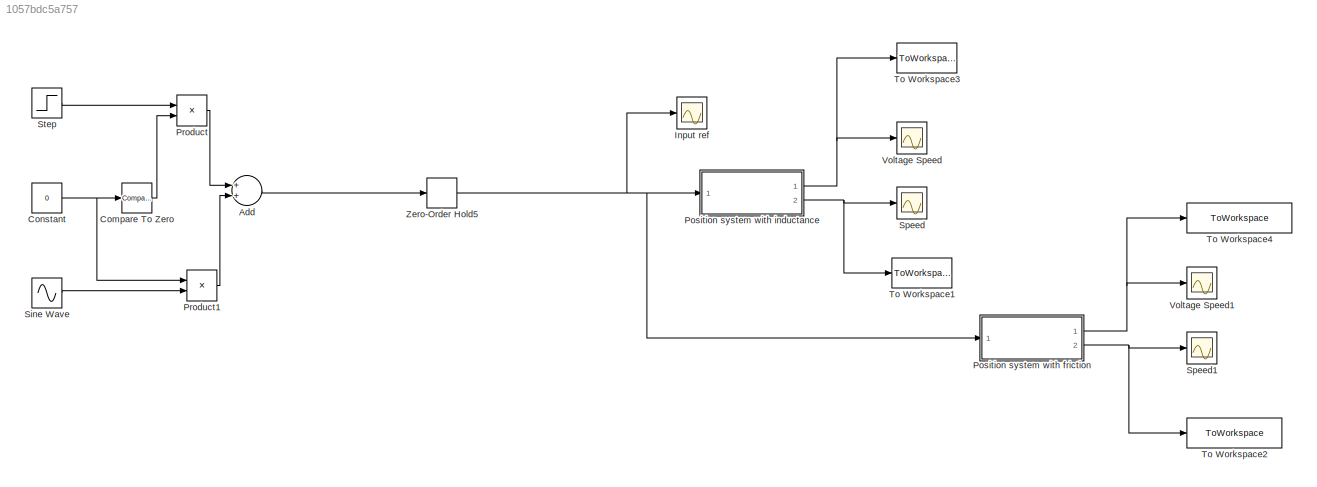
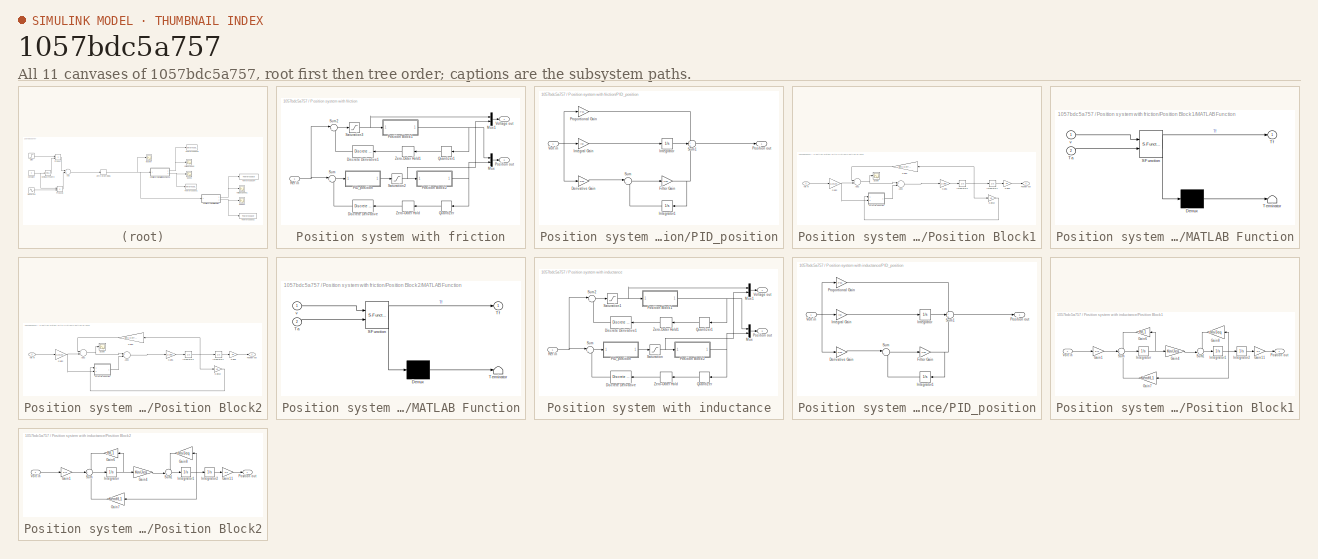
[diagram: thumbnail index - all 11 canvases of the model, root first then tree order]
MODEL slx_1057bdc5a757
KIND model
CONFIG AbsTol = auto
CONFIG FixedStep = auto
CONFIG MaxStep = auto
CONFIG MinStep = auto
CONFIG RelTol = 1e-3
CONFIG SampleTimeConstraint = Unconstrained
CONFIG Solver = ode45
CONFIG SolverMode = SingleTasking
CONFIG SolverName = ode45
CONFIG StartTime = 0.0
CONFIG StopTime = time
BLOCK [Sum] Add
  InputSameDT = off
  OutDataTypeStr = Inherit: Inherit via internal rule
  Ports = [2, 1]
  SaturateOnIntegerOverflow = off
BLOCK [Reference] Compare To Zero  REF=simulink/Logic and Bit
Operations/Compare
To Zero
  Ports = [1, 1]
  SourceBlock = simulink/Logic and Bit\nOperations/Compare\nTo Zero
  SourceType = Compare To Zero
BLOCK [Constant] Constant
  Value = 0
BLOCK [Scope] Input ref
  Ports = [1]
  ScopeSpecificationString = C++SS(StrPVP('Location','[680, 330, 1240, 750]'),StrPVP('Open','off'),MxPVP('AxesTitles',24,'struct(''axes1'',''%<SignalLabel>'')'),MxPVP('ScopeGraphics',28,'struct(''FigureColor'',''[0.5 0.5 0.5]'',''AxesColor'',''[0 0 0]'',''AxesTickColor'',''[1 1 1]'',''LineColors'',''[1 1 0;1 0 1;0 1 1;1 0 0;0 1 0;0 0 1]'',''LineStyles'',''-|-|-|-|-|-'',''LineWidths'',''[0.5 0.5 0.5 0.5 0.5 0.5]'',''MarkerStyl...<+317ch>
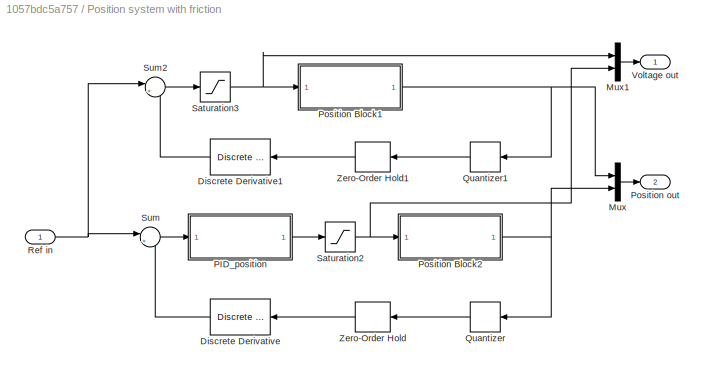
BLOCK [SubSystem] Position system with friction
  Ports = [1, 2]
  RequestExecContextInheritance = off
  Variant = off
BLOCK [Reference] Position system with friction/Discrete Derivative  REF=simulink/Discrete/Discrete Derivative
  Ports = [1, 1]
  SourceBlock = simulink/Discrete/Discrete Derivative
  SourceType = Discrete Derivative
BLOCK [Reference] Position system with friction/Discrete Derivative1  REF=simulink/Discrete/Discrete Derivative
  Ports = [1, 1]
  SourceBlock = simulink/Discrete/Discrete Derivative
  SourceType = Discrete Derivative
BLOCK [Mux] Position system with friction/Mux
  DisplayOption = bar
  Inputs = 2
  Ports = [2, 1]
BLOCK [Mux] Position system with friction/Mux1
  DisplayOption = bar
  Inputs = 2
  Ports = [2, 1]
BLOCK [SubSystem] Position system with friction/PID_position
  Ports = [1, 1]
  RequestExecContextInheritance = off
  Variant = off
BLOCK [Gain] Position system with friction/PID_position/Derivative Gain
  Gain = Dsp
  OutDataTypeStr = Inherit: Inherit via internal rule
  ParamDataTypeStr = Inherit: Inherit via internal rule
  SaturateOnIntegerOverflow = off
BLOCK [Gain] Position system with friction/PID_position/Filter Gain
  Gain = Nsp
  OutDataTypeStr = Inherit: Inherit via internal rule
  ParamDataTypeStr = Inherit: Inherit via internal rule
  SaturateOnIntegerOverflow = off
BLOCK [Gain] Position system with friction/PID_position/Integral Gain
  Gain = Isp
  OutDataTypeStr = Inherit: Inherit via internal rule
  ParamDataTypeStr = Inherit: Inherit via internal rule
  SaturateOnIntegerOverflow = off
BLOCK [Integrator] Position system with friction/PID_position/Integrator
  Ports = [1, 1]
BLOCK [Integrator] Position system with friction/PID_position/Integrator1
  Ports = [1, 1]
BLOCK [Outport] Position system with friction/PID_position/Position out
  IconDisplay = Port number
BLOCK [Gain] Position system with friction/PID_position/Proportional Gain
  Gain = Psp
  OutDataTypeStr = Inherit: Inherit via internal rule
  ParamDataTypeStr = Inherit: Inherit via internal rule
  SaturateOnIntegerOverflow = off
BLOCK [Sum] Position system with friction/PID_position/Sum
  IconShape = round
  InputSameDT = off
  Inputs = |+-
  OutDataTypeStr = Inherit: Inherit via internal rule
  Ports = [2, 1]
  SaturateOnIntegerOverflow = off
BLOCK [Sum] Position system with friction/PID_position/Sum1
  IconShape = round
  InputSameDT = off
  Inputs = +++
  OutDataTypeStr = Inherit: Inherit via internal rule
  Ports = [3, 1]
  SaturateOnIntegerOverflow = off
BLOCK [Inport] Position system with friction/PID_position/Volt in
  IconDisplay = Port number
BLOCK [SubSystem] Position system with friction/Position Block1
  Ports = [1, 1]
  RequestExecContextInheritance = off
  Variant = off
BLOCK [Sum] Position system with friction/Position Block1/Add2
  InputSameDT = off
  Inputs = -+
  OutDataTypeStr = Inherit: Inherit via internal rule
  Ports = [2, 1]
  SaturateOnIntegerOverflow = off
BLOCK [Sum] Position system with friction/Position Block1/Add3
  InputSameDT = off
  Inputs = +-
  OutDataTypeStr = Inherit: Inherit via internal rule
  Ports = [2, 1]
  SaturateOnIntegerOverflow = off
BLOCK [Gain] Position system with friction/Position Block1/Gain10
  Gain = 1/n
  OutDataTypeStr = Inherit: Inherit via internal rule
  ParamDataTypeStr = Inherit: Inherit via internal rule
  SaturateOnIntegerOverflow = off
BLOCK [Gain] Position system with friction/Position Block1/Gain2
  Gain = Km/R
  OutDataTypeStr = Inherit: Inherit via internal rule
  ParamDataTypeStr = Inherit: Inherit via internal rule
  SaturateOnIntegerOverflow = off
BLOCK [Gain] Position system with friction/Position Block1/Gain3
  Gain = dm+ Km*Kemf/R
  OutDataTypeStr = Inherit: Inherit via internal rule
  ParamDataTypeStr = Inherit: Inherit via internal rule
  SaturateOnIntegerOverflow = off
BLOCK [Gain] Position system with friction/Position Block1/Gain5
  Gain = 1/Jeq
  OutDataTypeStr = Inherit: Inherit via internal rule
  ParamDataTypeStr = Inherit: Inherit via internal rule
  SaturateOnIntegerOverflow = off
BLOCK [Gain] Position system with friction/Position Block1/Gain9
  Gain = 1/n
  OutDataTypeStr = Inherit: Inherit via internal rule
  ParamDataTypeStr = Inherit: Inherit via internal rule
  SaturateOnIntegerOverflow = off
BLOCK [Integrator] Position system with friction/Position Block1/Integrator3
  Ports = [1, 1]
BLOCK [Integrator] Position system with friction/Position Block1/Integrator4
  Ports = [1, 1]
BLOCK [SubSystem] Position system with friction/Position Block1/MATLAB Function
  ErrorFcn = Stateflow.Translate.translate
  PermitHierarchicalResolution = ExplicitOnly
  Ports = [2, 1]
  RequestExecContextInheritance = off
  SFBlockType = MATLAB Function
  TreatAsAtomicUnit = on
  Variant = off
BLOCK [Demux] Position system with friction/Position Block1/MATLAB Function/ Demux 
  Outputs = 1
  Ports = [1, 1]
BLOCK [S-Function] Position system with friction/Position Block1/MATLAB Function/ SFunction 
  EnableBusSupport = on
  FunctionName = sf_sfun
  PortCounts = [2 2]
  Ports = [2, 2]
  SFunctionDeploymentMode = off
  Tag = Stateflow S-Function SimLab3_2 1
BLOCK [Terminator] Position system with friction/Position Block1/MATLAB Function/ Terminator 
BLOCK [Inport] Position system with friction/Position Block1/MATLAB Function/Ta
  IconDisplay = Port number
  Port = 2
BLOCK [Outport] Position system with friction/Position Block1/MATLAB Function/Tf
  IconDisplay = Port number
BLOCK [Inport] Position system with friction/Position Block1/MATLAB Function/v
  IconDisplay = Port number
BLOCK [Outport] Position system with friction/Position Block1/Position out
  IconDisplay = Port number
BLOCK [Scope] Position system with friction/Position Block1/Scope
  Ports = [1]
  ScopeSpecificationString = C++SS(StrPVP('Location','[680, 330, 1240, 750]'),StrPVP('Open','off'),MxPVP('AxesTitles',24,'struct(''axes1'',''%<SignalLabel>'')'),MxPVP('ScopeGraphics',28,'struct(''FigureColor'',''[0.5 0.5 0.5]'',''AxesColor'',''[0 0 0]'',''AxesTickColor'',''[1 1 1]'',''LineColors'',''[1 1 0;1 0 1;0 1 1;1 0 0;0 1 0;0 0 1]'',''LineStyles'',''-|-|-|-|-|-'',''LineWidths'',''[0.5 0.5 0.5 0.5 0.5 0.5]'',''MarkerStyl...<+293ch>
BLOCK [Inport] Position system with friction/Position Block1/Volt in
  IconDisplay = Port number
BLOCK [SubSystem] Position system with friction/Position Block2
  Ports = [1, 1]
  RequestExecContextInheritance = off
  Variant = off
BLOCK [Sum] Position system with friction/Position Block2/Add2
  InputSameDT = off
  Inputs = -+
  OutDataTypeStr = Inherit: Inherit via internal rule
  Ports = [2, 1]
  SaturateOnIntegerOverflow = off
BLOCK [Sum] Position system with friction/Position Block2/Add3
  InputSameDT = off
  Inputs = +-
  OutDataTypeStr = Inherit: Inherit via internal rule
  Ports = [2, 1]
  SaturateOnIntegerOverflow = off
BLOCK [Gain] Position system with friction/Position Block2/Gain10
  Gain = 1/n
  OutDataTypeStr = Inherit: Inherit via internal rule
  ParamDataTypeStr = Inherit: Inherit via internal rule
  SaturateOnIntegerOverflow = off
BLOCK [Gain] Position system with friction/Position Block2/Gain2
  Gain = Km/R
  OutDataTypeStr = Inherit: Inherit via internal rule
  ParamDataTypeStr = Inherit: Inherit via internal rule
  SaturateOnIntegerOverflow = off
BLOCK [Gain] Position system with friction/Position Block2/Gain3
  Gain = dm+ Km*Kemf/R
  OutDataTypeStr = Inherit: Inherit via internal rule
  ParamDataTypeStr = Inherit: Inherit via internal rule
  SaturateOnIntegerOverflow = off
BLOCK [Gain] Position system with friction/Position Block2/Gain5
  Gain = 1/Jeq
  OutDataTypeStr = Inherit: Inherit via internal rule
  ParamDataTypeStr = Inherit: Inherit via internal rule
  SaturateOnIntegerOverflow = off
BLOCK [Gain] Position system with friction/Position Block2/Gain9
  Gain = 1/n
  OutDataTypeStr = Inherit: Inherit via internal rule
  ParamDataTypeStr = Inherit: Inherit via internal rule
  SaturateOnIntegerOverflow = off
BLOCK [Integrator] Position system with friction/Position Block2/Integrator3
  Ports = [1, 1]
BLOCK [Integrator] Position system with friction/Position Block2/Integrator4
  Ports = [1, 1]
BLOCK [SubSystem] Position system with friction/Position Block2/MATLAB Function
  ErrorFcn = Stateflow.Translate.translate
  PermitHierarchicalResolution = ExplicitOnly
  Ports = [2, 1]
  RequestExecContextInheritance = off
  SFBlockType = MATLAB Function
  TreatAsAtomicUnit = on
  Variant = off
BLOCK [Demux] Position system with friction/Position Block2/MATLAB Function/ Demux 
  Outputs = 1
  Ports = [1, 1]
BLOCK [S-Function] Position system with friction/Position Block2/MATLAB Function/ SFunction 
  EnableBusSupport = on
  FunctionName = sf_sfun
  PortCounts = [2 2]
  Ports = [2, 2]
  SFunctionDeploymentMode = off
  Tag = Stateflow S-Function SimLab3_2 4
BLOCK [Terminator] Position system with friction/Position Block2/MATLAB Function/ Terminator 
BLOCK [Inport] Position system with friction/Position Block2/MATLAB Function/Ta
  IconDisplay = Port number
  Port = 2
BLOCK [Outport] Position system with friction/Position Block2/MATLAB Function/Tf
  IconDisplay = Port number
BLOCK [Inport] Position system with friction/Position Block2/MATLAB Function/v
  IconDisplay = Port number
BLOCK [Outport] Position system with friction/Position Block2/Position out
  IconDisplay = Port number
BLOCK [Scope] Position system with friction/Position Block2/Scope
  Ports = [1]
  ScopeSpecificationString = C++SS(StrPVP('Location','[680, 330, 1240, 750]'),StrPVP('Open','off'),MxPVP('AxesTitles',24,'struct(''axes1'',''%<SignalLabel>'')'),MxPVP('ScopeGraphics',28,'struct(''FigureColor'',''[0.5 0.5 0.5]'',''AxesColor'',''[0 0 0]'',''AxesTickColor'',''[1 1 1]'',''LineColors'',''[1 1 0;1 0 1;0 1 1;1 0 0;0 1 0;0 0 1]'',''LineStyles'',''-|-|-|-|-|-'',''LineWidths'',''[0.5 0.5 0.5 0.5 0.5 0.5]'',''MarkerStyl...<+293ch>
BLOCK [Inport] Position system with friction/Position Block2/Volt in
  IconDisplay = Port number
BLOCK [Outport] Position system with friction/Position out
  IconDisplay = Port number
  Port = 2
BLOCK [Quantizer] Position system with friction/Quantizer
  QuantizationInterval = Pulses
  SampleTime = Ts
BLOCK [Quantizer] Position system with friction/Quantizer1
  QuantizationInterval = Pulses
  SampleTime = Ts
BLOCK [Inport] Position system with friction/Ref in
  IconDisplay = Port number
BLOCK [Saturate] Position system with friction/Saturation2
  InputPortMap = u0
  LowerLimit = -24
  Ports = [1, 1]
  UpperLimit = 24
BLOCK [Saturate] Position system with friction/Saturation3
  InputPortMap = u0
  LowerLimit = -24
  Ports = [1, 1]
  UpperLimit = 24
BLOCK [Sum] Position system with friction/Sum
  IconShape = round
  InputSameDT = off
  Inputs = |+-
  OutDataTypeStr = Inherit: Inherit via internal rule
  Ports = [2, 1]
  SaturateOnIntegerOverflow = off
BLOCK [Sum] Position system with friction/Sum2
  IconShape = round
  InputSameDT = off
  Inputs = |+-
  OutDataTypeStr = Inherit: Inherit via internal rule
  Ports = [2, 1]
  SaturateOnIntegerOverflow = off
BLOCK [Outport] Position system with friction/Voltage out
  IconDisplay = Port number
BLOCK [ZeroOrderHold] Position system with friction/Zero-Order Hold
  SampleTime = Ts
BLOCK [ZeroOrderHold] Position system with friction/Zero-Order Hold1
  SampleTime = Ts
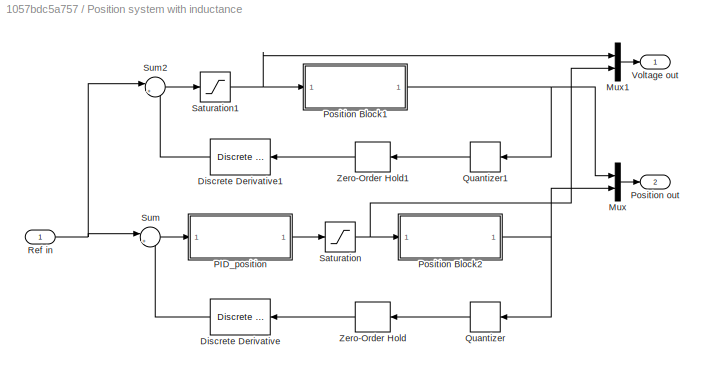
BLOCK [SubSystem] Position system with inductance
  Ports = [1, 2]
  RequestExecContextInheritance = off
  Variant = off
BLOCK [Reference] Position system with inductance/Discrete Derivative  REF=simulink/Discrete/Discrete Derivative
  Ports = [1, 1]
  SourceBlock = simulink/Discrete/Discrete Derivative
  SourceType = Discrete Derivative
BLOCK [Reference] Position system with inductance/Discrete Derivative1  REF=simulink/Discrete/Discrete Derivative
  Ports = [1, 1]
  SourceBlock = simulink/Discrete/Discrete Derivative
  SourceType = Discrete Derivative
BLOCK [Mux] Position system with inductance/Mux
  DisplayOption = bar
  Inputs = 2
  Ports = [2, 1]
BLOCK [Mux] Position system with inductance/Mux1
  DisplayOption = bar
  Inputs = 2
  Ports = [2, 1]
BLOCK [SubSystem] Position system with inductance/PID_position
  Ports = [1, 1]
  RequestExecContextInheritance = off
  Variant = off
BLOCK [Gain] Position system with inductance/PID_position/Derivative Gain
  Gain = Dsp
  OutDataTypeStr = Inherit: Inherit via internal rule
  ParamDataTypeStr = Inherit: Inherit via internal rule
  SaturateOnIntegerOverflow = off
BLOCK [Gain] Position system with inductance/PID_position/Filter Gain
  Gain = Nsp
  OutDataTypeStr = Inherit: Inherit via internal rule
  ParamDataTypeStr = Inherit: Inherit via internal rule
  SaturateOnIntegerOverflow = off
BLOCK [Gain] Position system with inductance/PID_position/Integral Gain
  Gain = Isp
  OutDataTypeStr = Inherit: Inherit via internal rule
  ParamDataTypeStr = Inherit: Inherit via internal rule
  SaturateOnIntegerOverflow = off
BLOCK [Integrator] Position system with inductance/PID_position/Integrator
  Ports = [1, 1]
BLOCK [Integrator] Position system with inductance/PID_position/Integrator1
  Ports = [1, 1]
BLOCK [Outport] Position system with inductance/PID_position/Position out
  IconDisplay = Port number
BLOCK [Gain] Position system with inductance/PID_position/Proportional Gain
  Gain = Psp
  OutDataTypeStr = Inherit: Inherit via internal rule
  ParamDataTypeStr = Inherit: Inherit via internal rule
  SaturateOnIntegerOverflow = off
BLOCK [Sum] Position system with inductance/PID_position/Sum
  IconShape = round
  InputSameDT = off
  Inputs = |+-
  OutDataTypeStr = Inherit: Inherit via internal rule
  Ports = [2, 1]
  SaturateOnIntegerOverflow = off
BLOCK [Sum] Position system with inductance/PID_position/Sum1
  IconShape = round
  InputSameDT = off
  Inputs = +++
  OutDataTypeStr = Inherit: Inherit via internal rule
  Ports = [3, 1]
  SaturateOnIntegerOverflow = off
BLOCK [Inport] Position system with inductance/PID_position/Volt in
  IconDisplay = Port number
BLOCK [SubSystem] Position system with inductance/Position Block1
  Ports = [1, 1]
  RequestExecContextInheritance = off
  Variant = off
BLOCK [Gain] Position system with inductance/Position Block1/Gain1
  Gain = 1/L1
  OutDataTypeStr = Inherit: Inherit via internal rule
  ParamDataTypeStr = Inherit: Inherit via internal rule
  SaturateOnIntegerOverflow = off
BLOCK [Gain] Position system with inductance/Position Block1/Gain11
  Gain = 1/n
  OutDataTypeStr = Inherit: Inherit via internal rule
  ParamDataTypeStr = Inherit: Inherit via internal rule
  SaturateOnIntegerOverflow = off
BLOCK [Gain] Position system with inductance/Position Block1/Gain4
  Gain = Km/Jeq
  OutDataTypeStr = Inherit: Inherit via internal rule
  ParamDataTypeStr = Inherit: Inherit via internal rule
  SaturateOnIntegerOverflow = off
BLOCK [Gain] Position system with inductance/Position Block1/Gain6
  Gain = R/L1
  OutDataTypeStr = Inherit: Inherit via internal rule
  ParamDataTypeStr = Inherit: Inherit via internal rule
  SaturateOnIntegerOverflow = off
BLOCK [Gain] Position system with inductance/Position Block1/Gain7
  Gain = Kemf/L1
  OutDataTypeStr = Inherit: Inherit via internal rule
  ParamDataTypeStr = Inherit: Inherit via internal rule
  SaturateOnIntegerOverflow = off
BLOCK [Gain] Position system with inductance/Position Block1/Gain8
  Gain = dm/Jeq
  OutDataTypeStr = Inherit: Inherit via internal rule
  ParamDataTypeStr = Inherit: Inherit via internal rule
  SaturateOnIntegerOverflow = off
BLOCK [Integrator] Position system with inductance/Position Block1/Integrator
  Ports = [1, 1]
BLOCK [Integrator] Position system with inductance/Position Block1/Integrator1
  Ports = [1, 1]
BLOCK [Integrator] Position system with inductance/Position Block1/Integrator2
  Ports = [1, 1]
BLOCK [Outport] Position system with inductance/Position Block1/Position out
  IconDisplay = Port number
BLOCK [Sum] Position system with inductance/Position Block1/Sum
  IconShape = round
  InputSameDT = off
  Inputs = -+-
  OutDataTypeStr = Inherit: Inherit via internal rule
  Ports = [3, 1]
  SaturateOnIntegerOverflow = off
BLOCK [Sum] Position system with inductance/Position Block1/Sum1
  IconShape = round
  InputSameDT = off
  Inputs = -+|
  OutDataTypeStr = Inherit: Inherit via internal rule
  Ports = [2, 1]
  SaturateOnIntegerOverflow = off
BLOCK [Inport] Position system with inductance/Position Block1/Volt in
  IconDisplay = Port number
BLOCK [SubSystem] Position system with inductance/Position Block2
  Ports = [1, 1]
  RequestExecContextInheritance = off
  Variant = off
BLOCK [Gain] Position system with inductance/Position Block2/Gain1
  Gain = 1/L1
  OutDataTypeStr = Inherit: Inherit via internal rule
  ParamDataTypeStr = Inherit: Inherit via internal rule
  SaturateOnIntegerOverflow = off
BLOCK [Gain] Position system with inductance/Position Block2/Gain11
  Gain = 1/n
  OutDataTypeStr = Inherit: Inherit via internal rule
  ParamDataTypeStr = Inherit: Inherit via internal rule
  SaturateOnIntegerOverflow = off
BLOCK [Gain] Position system with inductance/Position Block2/Gain4
  Gain = Km/Jeq
  OutDataTypeStr = Inherit: Inherit via internal rule
  ParamDataTypeStr = Inherit: Inherit via internal rule
  SaturateOnIntegerOverflow = off
BLOCK [Gain] Position system with inductance/Position Block2/Gain6
  Gain = R/L1
  OutDataTypeStr = Inherit: Inherit via internal rule
  ParamDataTypeStr = Inherit: Inherit via internal rule
  SaturateOnIntegerOverflow = off
BLOCK [Gain] Position system with inductance/Position Block2/Gain7
  Gain = Kemf/L1
  OutDataTypeStr = Inherit: Inherit via internal rule
  ParamDataTypeStr = Inherit: Inherit via internal rule
  SaturateOnIntegerOverflow = off
BLOCK [Gain] Position system with inductance/Position Block2/Gain8
  Gain = dm/Jeq
  OutDataTypeStr = Inherit: Inherit via internal rule
  ParamDataTypeStr = Inherit: Inherit via internal rule
  SaturateOnIntegerOverflow = off
BLOCK [Integrator] Position system with inductance/Position Block2/Integrator
  Ports = [1, 1]
BLOCK [Integrator] Position system with inductance/Position Block2/Integrator1
  Ports = [1, 1]
BLOCK [Integrator] Position system with inductance/Position Block2/Integrator2
  Ports = [1, 1]
BLOCK [Outport] Position system with inductance/Position Block2/Position out
  IconDisplay = Port number
BLOCK [Sum] Position system with inductance/Position Block2/Sum
  IconShape = round
  InputSameDT = off
  Inputs = -+-
  OutDataTypeStr = Inherit: Inherit via internal rule
  Ports = [3, 1]
  SaturateOnIntegerOverflow = off
BLOCK [Sum] Position system with inductance/Position Block2/Sum1
  IconShape = round
  InputSameDT = off
  Inputs = -+|
  OutDataTypeStr = Inherit: Inherit via internal rule
  Ports = [2, 1]
  SaturateOnIntegerOverflow = off
BLOCK [Inport] Position system with inductance/Position Block2/Volt in
  IconDisplay = Port number
BLOCK [Outport] Position system with inductance/Position out
  IconDisplay = Port number
  Port = 2
BLOCK [Quantizer] Position system with inductance/Quantizer
  QuantizationInterval = Pulses
  SampleTime = Ts
BLOCK [Quantizer] Position system with inductance/Quantizer1
  QuantizationInterval = Pulses
  SampleTime = Ts
BLOCK [Inport] Position system with inductance/Ref in
  IconDisplay = Port number
BLOCK [Saturate] Position system with inductance/Saturation
  InputPortMap = u0
  LowerLimit = -24
  Ports = [1, 1]
  UpperLimit = 24
BLOCK [Saturate] Position system with inductance/Saturation1
  InputPortMap = u0
  LowerLimit = -24
  Ports = [1, 1]
  UpperLimit = 24
BLOCK [Sum] Position system with inductance/Sum
  IconShape = round
  InputSameDT = off
  Inputs = |+-
  OutDataTypeStr = Inherit: Inherit via internal rule
  Ports = [2, 1]
  SaturateOnIntegerOverflow = off
BLOCK [Sum] Position system with inductance/Sum2
  IconShape = round
  InputSameDT = off
  Inputs = |+-
  OutDataTypeStr = Inherit: Inherit via internal rule
  Ports = [2, 1]
  SaturateOnIntegerOverflow = off
BLOCK [Outport] Position system with inductance/Voltage out
  IconDisplay = Port number
BLOCK [ZeroOrderHold] Position system with inductance/Zero-Order Hold
  SampleTime = Ts
BLOCK [ZeroOrderHold] Position system with inductance/Zero-Order Hold1
  SampleTime = Ts
BLOCK [Product] Product
  InputSameDT = off
  OutDataTypeStr = Inherit: Inherit via internal rule
  Ports = [2, 1]
  RndMeth = Floor
  SaturateOnIntegerOverflow = off
BLOCK [Product] Product1
  InputSameDT = off
  OutDataTypeStr = Inherit: Inherit via internal rule
  Ports = [2, 1]
  RndMeth = Floor
  SaturateOnIntegerOverflow = off
BLOCK [Sin] Sine Wave
  Amplitude = Amplitude
  Frequency = Freq
  Ports = [0, 1]
  SampleTime = 0
BLOCK [Scope] Speed
  Ports = [1]
  ScopeSpecificationString = C++SS(StrPVP('Location','[174, 527, 734, 947]'),StrPVP('Open','off'),MxPVP('AxesTitles',24,'struct(''axes1'',''%<SignalLabel>'')'),MxPVP('ScopeGraphics',28,'struct(''FigureColor'',''[0.5 0.5 0.5]'',''AxesColor'',''[0 0 0]'',''AxesTickColor'',''[1 1 1]'',''LineColors'',''[1 1 0;1 0 1;0 1 1;1 0 0;0 1 0;0 0 1]'',''LineStyles'',''-|-|-|-|-|-'',''LineWidths'',''[0.5 0.5 0.5 0.5 0.5 0.5]'',''MarkerStyle...<+287ch>
BLOCK [Scope] Speed1
  Ports = [1]
  ScopeSpecificationString = C++SS(StrPVP('Location','[744, 531, 1304, 951]'),StrPVP('Open','off'),MxPVP('AxesTitles',24,'struct(''axes1'',''%<SignalLabel>'')'),MxPVP('ScopeGraphics',28,'struct(''FigureColor'',''[0.5 0.5 0.5]'',''AxesColor'',''[0 0 0]'',''AxesTickColor'',''[1 1 1]'',''LineColors'',''[1 1 0;1 0 1;0 1 1;1 0 0;0 1 0;0 0 1]'',''LineStyles'',''-|-|-|-|-|-'',''LineWidths'',''[0.5 0.5 0.5 0.5 0.5 0.5]'',''MarkerStyl...<+319ch>
BLOCK [Step] Step
  After = Speed_ref_step
  SampleTime = 0
  Time = 0
BLOCK [ToWorkspace] To Workspace1
  FixptAsFi = on
  MaxDataPoints = inf
  Ports = [1]
  SampleTime = Ts
  Save2DSignal = 3-D array (concatenate along third dimension)
  SaveFormat = Structure With Time
  VariableName = SpeedOutL
BLOCK [ToWorkspace] To Workspace2
  FixptAsFi = on
  MaxDataPoints = inf
  Ports = [1]
  SampleTime = Ts
  Save2DSignal = 3-D array (concatenate along third dimension)
  SaveFormat = Structure With Time
  VariableName = SpeedOutFriction
BLOCK [ToWorkspace] To Workspace3
  FixptAsFi = on
  MaxDataPoints = inf
  Ports = [1]
  SampleTime = Ts
  Save2DSignal = 3-D array (concatenate along third dimension)
  SaveFormat = Structure With Time
  VariableName = VoltageOutL
BLOCK [ToWorkspace] To Workspace4
  FixptAsFi = on
  MaxDataPoints = inf
  Ports = [1]
  SampleTime = Ts
  Save2DSignal = 3-D array (concatenate along third dimension)
  SaveFormat = Structure With Time
  VariableName = VoltageOutFriction
BLOCK [Scope] Voltage Speed
  Ports = [1]
  ScopeSpecificationString = C++SS(StrPVP('Location','[680, 330, 1240, 750]'),StrPVP('Open','off'),MxPVP('AxesTitles',24,'struct(''axes1'',''%<SignalLabel>'')'),MxPVP('ScopeGraphics',28,'struct(''FigureColor'',''[0.5 0.5 0.5]'',''AxesColor'',''[0 0 0]'',''AxesTickColor'',''[1 1 1]'',''LineColors'',''[1 1 0;1 0 1;0 1 1;1 0 0;0 1 0;0 0 1]'',''LineStyles'',''-|-|-|-|-|-'',''LineWidths'',''[0.5 0.5 0.5 0.5 0.5 0.5]'',''MarkerStyl...<+318ch>
BLOCK [Scope] Voltage Speed1
  Ports = [1]
  ScopeSpecificationString = C++SS(StrPVP('Location','[680, 330, 1240, 750]'),StrPVP('Open','off'),MxPVP('AxesTitles',24,'struct(''axes1'',''%<SignalLabel>'')'),MxPVP('ScopeGraphics',28,'struct(''FigureColor'',''[0.5 0.5 0.5]'',''AxesColor'',''[0 0 0]'',''AxesTickColor'',''[1 1 1]'',''LineColors'',''[1 1 0;1 0 1;0 1 1;1 0 0;0 1 0;0 0 1]'',''LineStyles'',''-|-|-|-|-|-'',''LineWidths'',''[0.5 0.5 0.5 0.5 0.5 0.5]'',''MarkerStyl...<+304ch>
BLOCK [ZeroOrderHold] Zero-Order Hold5
  SampleTime = Ts
LINE Add:1 -> Zero-Order Hold5:1
LINE Compare To Zero:1 -> Product:2
NET Constant:1 -> Compare To Zero:1, Product1:1
LINE Position system with friction/Discrete Derivative1:1 -> Position system with friction/Sum2:2
LINE Position system with friction/Discrete Derivative:1 -> Position system with friction/Sum:2
LINE Position system with friction/Mux1:1 -> Position system with friction/Voltage out:1
LINE Position system with friction/Mux:1 -> Position system with friction/Position out:1
LINE Position system with friction/PID_position/Derivative Gain:1 -> Position system with friction/PID_position/Sum:1
NET Position system with friction/PID_position/Filter Gain:1 -> Position system with friction/PID_position/Integrator1:1, Position system with friction/PID_position/Sum1:3
LINE Position system with friction/PID_position/Integral Gain:1 -> Position system with friction/PID_position/Integrator:1
LINE Position system with friction/PID_position/Integrator1:1 -> Position system with friction/PID_position/Sum:2
LINE Position system with friction/PID_position/Integrator:1 -> Position system with friction/PID_position/Sum1:2
LINE Position system with friction/PID_position/Proportional Gain:1 -> Position system with friction/PID_position/Sum1:1
LINE Position system with friction/PID_position/Sum1:1 -> Position system with friction/PID_position/Position out:1
LINE Position system with friction/PID_position/Sum:1 -> Position system with friction/PID_position/Filter Gain:1
NET Position system with friction/PID_position/Volt in:1 -> Position system with friction/PID_position/Derivative Gain:1, Position system with friction/PID_position/Integral Gain:1, Position system with friction/PID_position/Proportional Gain:1
LINE Position system with friction/PID_position:1 -> Position system with friction/Saturation2:1
NET Position system with friction/Position Block1/Add2:1 -> Position system with friction/Position Block1/Add3:1, Position system with friction/Position Block1/Scope:1
LINE Position system with friction/Position Block1/Add3:1 -> Position system with friction/Position Block1/Gain5:1
LINE Position system with friction/Position Block1/Gain10:1 -> Position system with friction/Position Block1/MATLAB Function:1
NET Position system with friction/Position Block1/Gain2:1 -> Position system with friction/Position Block1/Add2:2, Position system with friction/Position Block1/MATLAB Function:2
LINE Position system with friction/Position Block1/Gain3:1 -> Position system with friction/Position Block1/Add2:1
LINE Position system with friction/Position Block1/Gain5:1 -> Position system with friction/Position Block1/Integrator3:1
LINE Position system with friction/Position Block1/Gain9:1 -> Position system with friction/Position Block1/Position out:1
NET Position system with friction/Position Block1/Integrator3:1 -> Position system with friction/Position Block1/Gain10:1, Position system with friction/Position Block1/Gain3:1, Position system with friction/Position Block1/Integrator4:1
LINE Position system with friction/Position Block1/Integrator4:1 -> Position system with friction/Position Block1/Gain9:1
LINE Position system with friction/Position Block1/MATLAB Function:1 -> Position system with friction/Position Block1/Add3:2
LINE Position system with friction/Position Block1/Volt in:1 -> Position system with friction/Position Block1/Gain2:1
NET Position system with friction/Position Block1:1 -> Position system with friction/Mux:1, Position system with friction/Quantizer1:1
NET Position system with friction/Position Block2/Add2:1 -> Position system with friction/Position Block2/Add3:1, Position system with friction/Position Block2/Scope:1
LINE Position system with friction/Position Block2/Add3:1 -> Position system with friction/Position Block2/Gain5:1
LINE Position system with friction/Position Block2/Gain10:1 -> Position system with friction/Position Block2/MATLAB Function:1
NET Position system with friction/Position Block2/Gain2:1 -> Position system with friction/Position Block2/Add2:2, Position system with friction/Position Block2/MATLAB Function:2
LINE Position system with friction/Position Block2/Gain3:1 -> Position system with friction/Position Block2/Add2:1
LINE Position system with friction/Position Block2/Gain5:1 -> Position system with friction/Position Block2/Integrator3:1
LINE Position system with friction/Position Block2/Gain9:1 -> Position system with friction/Position Block2/Position out:1
NET Position system with friction/Position Block2/Integrator3:1 -> Position system with friction/Position Block2/Gain10:1, Position system with friction/Position Block2/Gain3:1, Position system with friction/Position Block2/Integrator4:1
LINE Position system with friction/Position Block2/Integrator4:1 -> Position system with friction/Position Block2/Gain9:1
LINE Position system with friction/Position Block2/MATLAB Function:1 -> Position system with friction/Position Block2/Add3:2
LINE Position system with friction/Position Block2/Volt in:1 -> Position system with friction/Position Block2/Gain2:1
NET Position system with friction/Position Block2:1 -> Position system with friction/Mux:2, Position system with friction/Quantizer:1
LINE Position system with friction/Quantizer1:1 -> Position system with friction/Zero-Order Hold1:1
LINE Position system with friction/Quantizer:1 -> Position system with friction/Zero-Order Hold:1
NET Position system with friction/Ref in:1 -> Position system with friction/Sum2:1, Position system with friction/Sum:1
NET Position system with friction/Saturation2:1 -> Position system with friction/Mux1:2, Position system with friction/Position Block2:1
NET Position system with friction/Saturation3:1 -> Position system with friction/Mux1:1, Position system with friction/Position Block1:1
LINE Position system with friction/Sum2:1 -> Position system with friction/Saturation3:1
LINE Position system with friction/Sum:1 -> Position system with friction/PID_position:1
LINE Position system with friction/Zero-Order Hold1:1 -> Position system with friction/Discrete Derivative1:1
LINE Position system with friction/Zero-Order Hold:1 -> Position system with friction/Discrete Derivative:1
NET Position system with friction:1 -> To Workspace4:1, Voltage Speed1:1
NET Position system with friction:2 -> Speed1:1, To Workspace2:1
LINE Position system with inductance/Discrete Derivative1:1 -> Position system with inductance/Sum2:2
LINE Position system with inductance/Discrete Derivative:1 -> Position system with inductance/Sum:2
LINE Position system with inductance/Mux1:1 -> Position system with inductance/Voltage out:1
LINE Position system with inductance/Mux:1 -> Position system with inductance/Position out:1
LINE Position system with inductance/PID_position/Derivative Gain:1 -> Position system with inductance/PID_position/Sum:1
NET Position system with inductance/PID_position/Filter Gain:1 -> Position system with inductance/PID_position/Integrator1:1, Position system with inductance/PID_position/Sum1:3
LINE Position system with inductance/PID_position/Integral Gain:1 -> Position system with inductance/PID_position/Integrator:1
LINE Position system with inductance/PID_position/Integrator1:1 -> Position system with inductance/PID_position/Sum:2
LINE Position system with inductance/PID_position/Integrator:1 -> Position system with inductance/PID_position/Sum1:2
LINE Position system with inductance/PID_position/Proportional Gain:1 -> Position system with inductance/PID_position/Sum1:1
LINE Position system with inductance/PID_position/Sum1:1 -> Position system with inductance/PID_position/Position out:1
LINE Position system with inductance/PID_position/Sum:1 -> Position system with inductance/PID_position/Filter Gain:1
NET Position system with inductance/PID_position/Volt in:1 -> Position system with inductance/PID_position/Derivative Gain:1, Position system with inductance/PID_position/Integral Gain:1, Position system with inductance/PID_position/Proportional Gain:1
LINE Position system with inductance/PID_position:1 -> Position system with inductance/Saturation:1
LINE Position system with inductance/Position Block1/Gain11:1 -> Position system with inductance/Position Block1/Position out:1
LINE Position system with inductance/Position Block1/Gain1:1 -> Position system with inductance/Position Block1/Sum:2
LINE Position system with inductance/Position Block1/Gain4:1 -> Position system with inductance/Position Block1/Sum1:2
LINE Position system with inductance/Position Block1/Gain6:1 -> Position system with inductance/Position Block1/Sum:1
LINE Position system with inductance/Position Block1/Gain7:1 -> Position system with inductance/Position Block1/Sum:3
LINE Position system with inductance/Position Block1/Gain8:1 -> Position system with inductance/Position Block1/Sum1:1
NET Position system with inductance/Position Block1/Integrator1:1 -> Position system with inductance/Position Block1/Gain7:1, Position system with inductance/Position Block1/Gain8:1, Position system with inductance/Position Block1/Integrator2:1
LINE Position system with inductance/Position Block1/Integrator2:1 -> Position system with inductance/Position Block1/Gain11:1
NET Position system with inductance/Position Block1/Integrator:1 -> Position system with inductance/Position Block1/Gain4:1, Position system with inductance/Position Block1/Gain6:1
LINE Position system with inductance/Position Block1/Sum1:1 -> Position system with inductance/Position Block1/Integrator1:1
LINE Position system with inductance/Position Block1/Sum:1 -> Position system with inductance/Position Block1/Integrator:1
LINE Position system with inductance/Position Block1/Volt in:1 -> Position system with inductance/Position Block1/Gain1:1
NET Position system with inductance/Position Block1:1 -> Position system with inductance/Mux:1, Position system with inductance/Quantizer1:1
LINE Position system with inductance/Position Block2/Gain11:1 -> Position system with inductance/Position Block2/Position out:1
LINE Position system with inductance/Position Block2/Gain1:1 -> Position system with inductance/Position Block2/Sum:2
LINE Position system with inductance/Position Block2/Gain4:1 -> Position system with inductance/Position Block2/Sum1:2
LINE Position system with inductance/Position Block2/Gain6:1 -> Position system with inductance/Position Block2/Sum:1
LINE Position system with inductance/Position Block2/Gain7:1 -> Position system with inductance/Position Block2/Sum:3
LINE Position system with inductance/Position Block2/Gain8:1 -> Position system with inductance/Position Block2/Sum1:1
NET Position system with inductance/Position Block2/Integrator1:1 -> Position system with inductance/Position Block2/Gain7:1, Position system with inductance/Position Block2/Gain8:1, Position system with inductance/Position Block2/Integrator2:1
LINE Position system with inductance/Position Block2/Integrator2:1 -> Position system with inductance/Position Block2/Gain11:1
NET Position system with inductance/Position Block2/Integrator:1 -> Position system with inductance/Position Block2/Gain4:1, Position system with inductance/Position Block2/Gain6:1
LINE Position system with inductance/Position Block2/Sum1:1 -> Position system with inductance/Position Block2/Integrator1:1
LINE Position system with inductance/Position Block2/Sum:1 -> Position system with inductance/Position Block2/Integrator:1
LINE Position system with inductance/Position Block2/Volt in:1 -> Position system with inductance/Position Block2/Gain1:1
NET Position system with inductance/Position Block2:1 -> Position system with inductance/Mux:2, Position system with inductance/Quantizer:1
LINE Position system with inductance/Quantizer1:1 -> Position system with inductance/Zero-Order Hold1:1
LINE Position system with inductance/Quantizer:1 -> Position system with inductance/Zero-Order Hold:1
NET Position system with inductance/Ref in:1 -> Position system with inductance/Sum2:1, Position system with inductance/Sum:1
NET Position system with inductance/Saturation1:1 -> Position system with inductance/Mux1:1, Position system with inductance/Position Block1:1
NET Position system with inductance/Saturation:1 -> Position system with inductance/Mux1:2, Position system with inductance/Position Block2:1
LINE Position system with inductance/Sum2:1 -> Position system with inductance/Saturation1:1
LINE Position system with inductance/Sum:1 -> Position system with inductance/PID_position:1
LINE Position system with inductance/Zero-Order Hold1:1 -> Position system with inductance/Discrete Derivative1:1
LINE Position system with inductance/Zero-Order Hold:1 -> Position system with inductance/Discrete Derivative:1
NET Position system with inductance:1 -> To Workspace3:1, Voltage Speed:1
NET Position system with inductance:2 -> Speed:1, To Workspace1:1
LINE Product1:1 -> Add:2
LINE Product:1 -> Add:1
LINE Sine Wave:1 -> Product1:2
LINE Step:1 -> Product:1
NET Zero-Order Hold5:1 -> Input ref:1, Position system with friction:1, Position system with inductance:1
note: NET lines group one-source signal fan-out (src -> all destinations, sorted); 1:1 wires keep LINE
CHART Position system with friction/Position Block1/MATLAB Function states=1 transitions=1
  STATE_LABEL 'eML_blk_kernel()'
  STATE_LABEL 'SCRIPT:\nfunction Tf = fcn(v,Ta)\nTc = 1e-3;\ndv = 1e-1;\nif abs(v) < dv\n    if abs(Ta) > Tc\n        Tf = Tc*sign(Ta);\n    else\n        Tf = Ta;\n    end\nelse\n    Tf = Tc*sign(v);\nend'
CHART Position system with friction/Position Block2/MATLAB Function states=1 transitions=1
  STATE_LABEL 'eML_blk_kernel()'
  STATE_LABEL 'SCRIPT:\nfunction Tf = fcn(v,Ta)\nTc = 1e-3;\ndv = 1e-1;\nif abs(v) < dv\n    if abs(Ta) > Tc\n        Tf = Tc*sign(Ta);\n    else\n        Tf = Ta;\n    end\nelse\n    Tf = Tc*sign(v);\nend'
